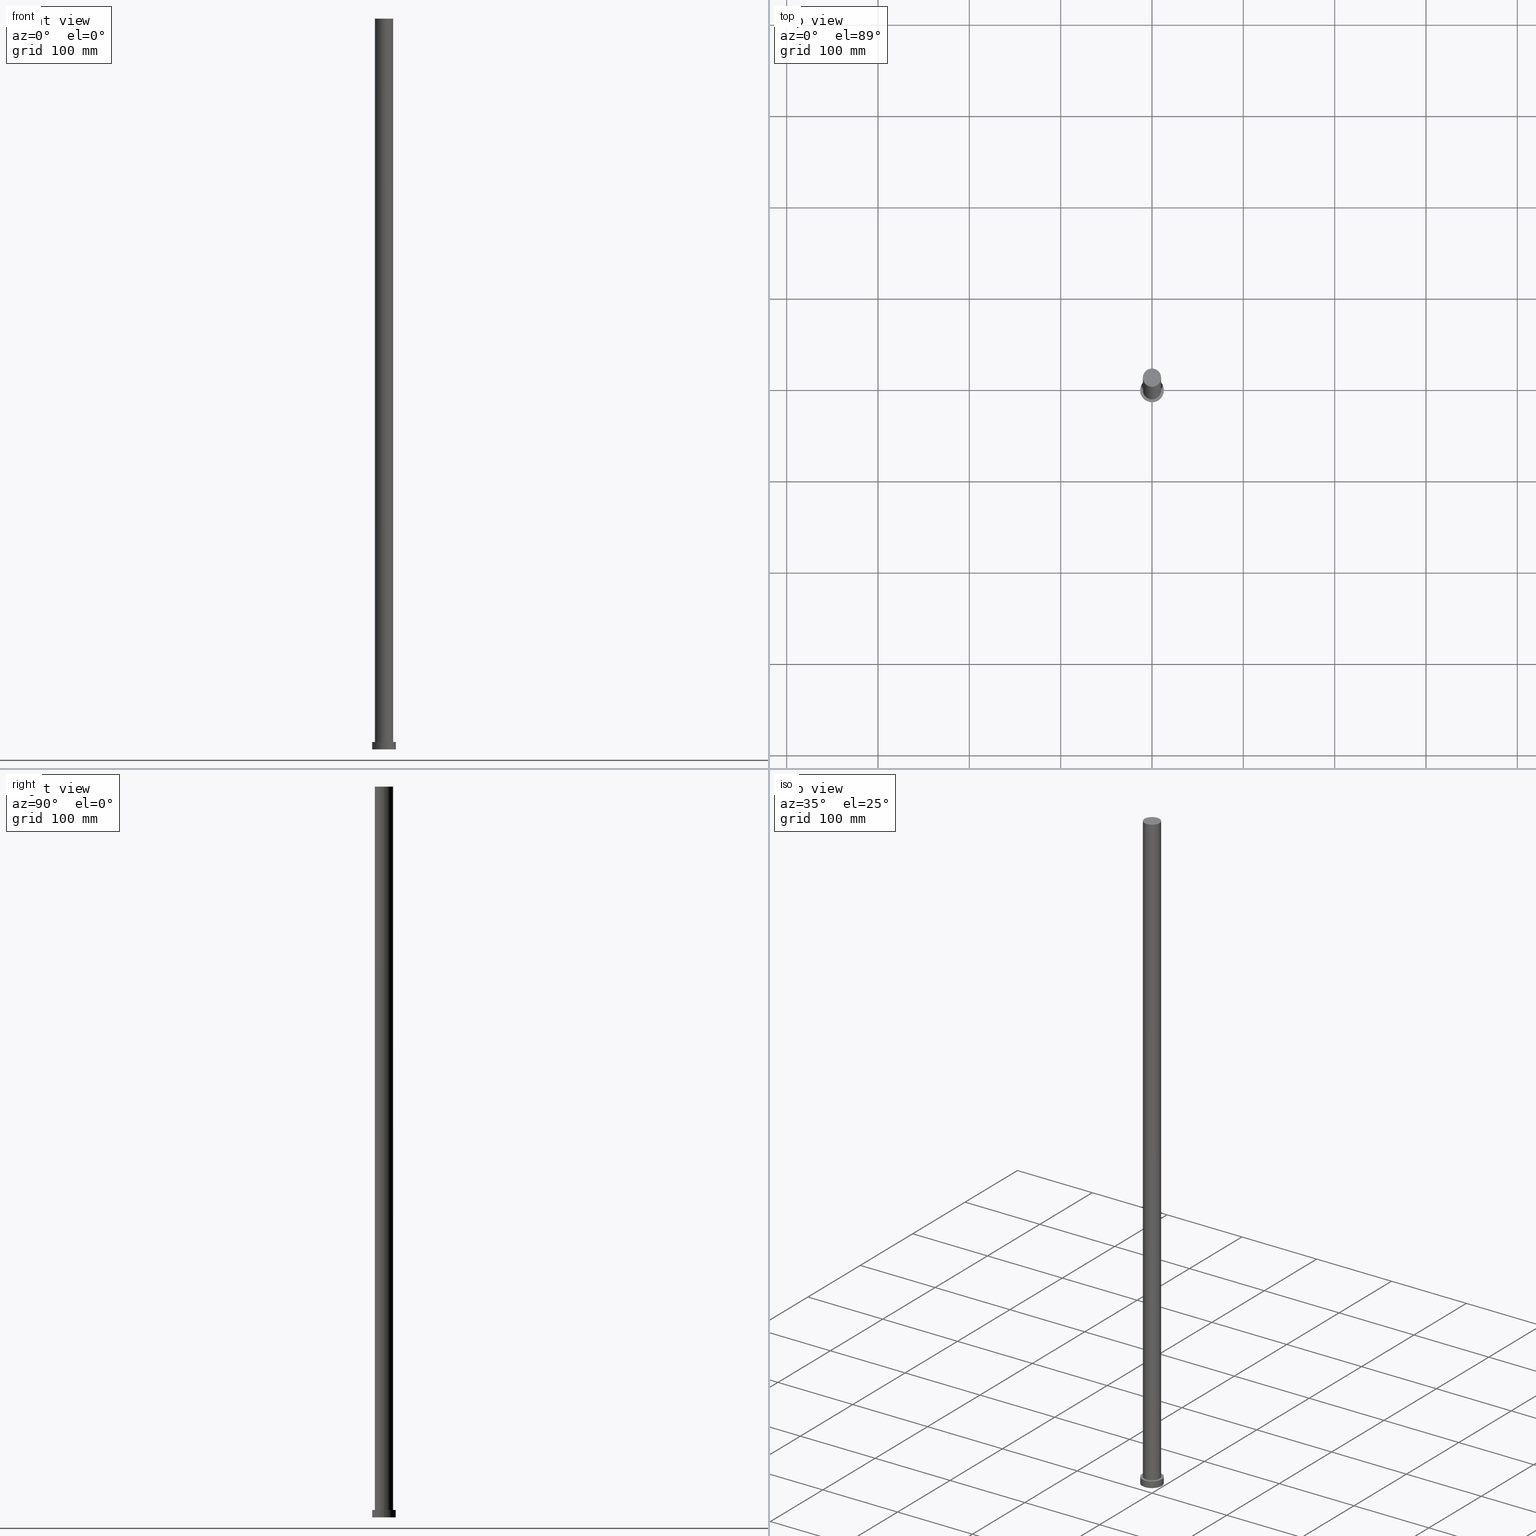
[diagram: canonical four-view strip — front | top / right | iso, engineering-drawing reading convention]
A machine part, canonical four-view strip (front | top / right | iso — engineering-drawing reading convention). The complete STEP part file that produces these views, byte-faithful:
ISO-10303-21;
HEADER;
FILE_DESCRIPTION (( 'STEP AP203' ),
    '1' );
FILE_NAME ('14ce.STEP',
    '2023-02-13T07:53:13',
    ( '' ),
    ( '' ),
    'SwSTEP 2.0',
    'SolidWorks 2019',
    '' );
FILE_SCHEMA (( 'CONFIG_CONTROL_DESIGN' ));
ENDSEC;

DATA;
#1 = VECTOR ( 'NONE', #190, 1000.000000000000000 ) ;
#2 = CARTESIAN_POINT ( 'NONE',  ( 0.000000000000000000, 0.000000000000000000, 800.0000000000000000 ) ) ;
#3 = CARTESIAN_POINT ( 'NONE',  ( 0.000000000000000000, 0.000000000000000000, 0.000000000000000000 ) ) ;
#4 = APPROVAL_DATE_TIME ( #139, #84 ) ;
#5 = CARTESIAN_POINT ( 'NONE',  ( 10.00000000000000000, 1.224646799147353256E-15, 8.000000000000000000 ) ) ;
#6 = CARTESIAN_POINT ( 'NONE',  ( 0.000000000000000000, 0.000000000000000000, 8.000000000000000000 ) ) ;
#7 = DIRECTION ( 'NONE',  ( 1.000000000000000000, 0.000000000000000000, 0.000000000000000000 ) ) ;
#8 = APPROVAL ( #182, 'NEUR�EN�' ) ;
#9 = CALENDAR_DATE ( 2023, 13, 2 ) ;
#10 = CIRCLE ( 'NONE', #154, 10.00000000000000000 ) ;
#11 = ADVANCED_FACE ( 'NONE', ( #239 ), #45, .T. ) ;
#12 = EDGE_CURVE ( 'NONE', #250, #96, #197, .T. ) ;
#13 = VECTOR ( 'NONE', #92, 1000.000000000000000 ) ;
#14 = CC_DESIGN_APPROVAL ( #8, ( #198 ) ) ;
#15 = VERTEX_POINT ( 'NONE', #5 ) ;
#16 = ORIENTED_EDGE ( 'NONE', *, *, #54, .F. ) ;
#17 = PERSON_AND_ORGANIZATION_ROLE ( 'design_owner' ) ;
#18 = AXIS2_PLACEMENT_3D ( 'NONE', #167, #252, #116 ) ;
#19 = DIRECTION ( 'NONE',  ( 0.000000000000000000, 0.000000000000000000, 1.000000000000000000 ) ) ;
#20 = DIRECTION ( 'NONE',  ( 1.000000000000000000, 0.000000000000000000, -0.000000000000000000 ) ) ;
#21 = LINE ( 'NONE', #230, #13 ) ;
#22 = DIRECTION ( 'NONE',  ( -0.000000000000000000, -0.000000000000000000, -1.000000000000000000 ) ) ;
#23 = LOCAL_TIME ( 8, 53, 13.00000000000000000, #224 ) ;
#24 = DIRECTION ( 'NONE',  ( 1.000000000000000000, 0.000000000000000000, -0.000000000000000000 ) ) ;
#25 = CARTESIAN_POINT ( 'NONE',  ( 10.00000000000000000, 1.224646799147353256E-15, 800.0000000000000000 ) ) ;
#26 = CARTESIAN_POINT ( 'NONE',  ( 0.000000000000000000, 0.000000000000000000, 800.0000000000000000 ) ) ;
#27 = PERSON_AND_ORGANIZATION ( #49, #136 ) ;
#28 = CLOSED_SHELL ( 'NONE', ( #106, #11, #141, #126, #117, #155, #212 ) ) ;
#29 = EDGE_CURVE ( 'NONE', #96, #93, #193, .T. ) ;
#30 = ORIENTED_EDGE ( 'NONE', *, *, #12, .T. ) ;
#31 = SECURITY_CLASSIFICATION ( '', '', #87 ) ;
#32 = DATE_AND_TIME ( #180, #89 ) ;
#33 = EDGE_LOOP ( 'NONE', ( #65, #202, #214, #52 ) ) ;
#34 = ORIENTED_EDGE ( 'NONE', *, *, #228, .F. ) ;
#35 = CARTESIAN_POINT ( 'NONE',  ( -13.00000000000000178, 0.000000000000000000, 0.000000000000000000 ) ) ;
#36 = VECTOR ( 'NONE', #99, 1000.000000000000000 ) ;
#37 = CARTESIAN_POINT ( 'NONE',  ( 13.00000000000000178, 1.592040838891559293E-15, 0.000000000000000000 ) ) ;
#38 = EDGE_CURVE ( 'NONE', #199, #90, #131, .T. ) ;
#39 = CARTESIAN_POINT ( 'NONE',  ( -13.00000000000000178, 0.000000000000000000, 8.000000000000000000 ) ) ;
#40 = DIRECTION ( 'NONE',  ( 0.000000000000000000, 0.000000000000000000, 1.000000000000000000 ) ) ;
#41 = DIRECTION ( 'NONE',  ( -0.000000000000000000, -0.000000000000000000, -1.000000000000000000 ) ) ;
#42 = CYLINDRICAL_SURFACE ( 'NONE', #226, 13.00000000000000178 ) ;
#43 = AXIS2_PLACEMENT_3D ( 'NONE', #73, #189, #55 ) ;
#44 = DIRECTION ( 'NONE',  ( 1.000000000000000000, 0.000000000000000000, 0.000000000000000000 ) ) ;
#45 = CYLINDRICAL_SURFACE ( 'NONE', #113, 13.00000000000000178 ) ;
#46 = CARTESIAN_POINT ( 'NONE',  ( 0.000000000000000000, 0.000000000000000000, 8.000000000000000000 ) ) ;
#47 = VERTEX_POINT ( 'NONE', #25 ) ;
#48 = EDGE_LOOP ( 'NONE', ( #222, #243, #111, #249 ) ) ;
#49 = PERSON ( 'NEUR�EN�', 'NEUR�EN�', 'NEUR�EN�', ('NEUR�EN�'), ('NEUR�EN�'), ('NEUR�EN�') ) ;
#50 = COORDINATED_UNIVERSAL_TIME_OFFSET ( 1, 0, .AHEAD. ) ;
#51 = DATE_TIME_ROLE ( 'creation_date' ) ;
#52 = ORIENTED_EDGE ( 'NONE', *, *, #38, .F. ) ;
#53 = LOCAL_TIME ( 8, 53, 13.00000000000000000, #135 ) ;
#54 = EDGE_CURVE ( 'NONE', #96, #250, #201, .T. ) ;
#55 = DIRECTION ( 'NONE',  ( 1.000000000000000000, 0.000000000000000000, 0.000000000000000000 ) ) ;
#56 = CARTESIAN_POINT ( 'NONE',  ( 0.000000000000000000, 0.000000000000000000, 8.000000000000000000 ) ) ;
#57 = DIRECTION ( 'NONE',  ( -1.000000000000000000, 0.000000000000000000, 0.000000000000000000 ) ) ;
#58 = DIRECTION ( 'NONE',  ( 1.000000000000000000, 0.000000000000000000, 0.000000000000000000 ) ) ;
#59 = DIRECTION ( 'NONE',  ( 0.000000000000000000, 0.000000000000000000, 1.000000000000000000 ) ) ;
#60 = CARTESIAN_POINT ( 'NONE',  ( 0.000000000000000000, 0.000000000000000000, 800.0000000000000000 ) ) ;
#61 = CC_DESIGN_DATE_AND_TIME_ASSIGNMENT ( #185, #91, ( #31 ) ) ;
#62 = CARTESIAN_POINT ( 'NONE',  ( -10.00000000000000000, 0.000000000000000000, 8.000000000000000000 ) ) ;
#63 = SHAPE_DEFINITION_REPRESENTATION ( #174, #151 ) ;
#64 = CARTESIAN_POINT ( 'NONE',  ( 0.000000000000000000, 0.000000000000000000, 8.000000000000000000 ) ) ;
#65 = ORIENTED_EDGE ( 'NONE', *, *, #186, .F. ) ;
#66 = CIRCLE ( 'NONE', #104, 13.00000000000000178 ) ;
#67 = CC_DESIGN_SECURITY_CLASSIFICATION ( #31, ( #198 ) ) ;
#68 = AXIS2_PLACEMENT_3D ( 'NONE', #209, #40, #24 ) ;
#69 = APPROVAL_PERSON_ORGANIZATION ( #112, #86, #227 ) ;
#70 = ORIENTED_EDGE ( 'NONE', *, *, #148, .T. ) ;
#71 = EDGE_LOOP ( 'NONE', ( #146, #134 ) ) ;
#72 = CALENDAR_DATE ( 2023, 13, 2 ) ;
#73 = CARTESIAN_POINT ( 'NONE',  ( 0.000000000000000000, 0.000000000000000000, 0.000000000000000000 ) ) ;
#74 = DATE_AND_TIME ( #72, #127 ) ;
#75 = APPROVAL_ROLE ( '' ) ;
#76 = APPLICATION_CONTEXT ( 'configuration controlled 3d designs of mechanical parts and assemblies' ) ;
#77 = DIRECTION ( 'NONE',  ( 0.000000000000000000, 0.000000000000000000, 1.000000000000000000 ) ) ;
#78 = DIRECTION ( 'NONE',  ( 0.000000000000000000, 0.000000000000000000, 1.000000000000000000 ) ) ;
#79 = APPROVAL_STATUS ( 'not_yet_approved' ) ;
#80 = PLANE ( 'NONE',  #18 ) ;
#81 = PERSON_AND_ORGANIZATION_ROLE ( 'creator' ) ;
#82 = CARTESIAN_POINT ( 'NONE',  ( -10.00000000000000000, 0.000000000000000000, 800.0000000000000000 ) ) ;
#83 = AXIS2_PLACEMENT_3D ( 'NONE', #171, #231, #20 ) ;
#84 = APPROVAL ( #79, 'NEUR�EN�' ) ;
#85 =( GEOMETRIC_REPRESENTATION_CONTEXT ( 3 ) GLOBAL_UNCERTAINTY_ASSIGNED_CONTEXT ( ( #128 ) ) GLOBAL_UNIT_ASSIGNED_CONTEXT ( ( #95, #220, #160 ) ) REPRESENTATION_CONTEXT ( 'NONE', 'WORKASPACE' ) );
#86 = APPROVAL ( #207, 'NEUR�EN�' ) ;
#87 = SECURITY_CLASSIFICATION_LEVEL ( 'unclassified' ) ;
#88 = EDGE_LOOP ( 'NONE', ( #30, #247 ) ) ;
#89 = LOCAL_TIME ( 8, 53, 13.00000000000000000, #50 ) ;
#90 = VERTEX_POINT ( 'NONE', #62 ) ;
#91 = DATE_TIME_ROLE ( 'classification_date' ) ;
#92 = DIRECTION ( 'NONE',  ( -0.000000000000000000, -0.000000000000000000, -1.000000000000000000 ) ) ;
#93 = VERTEX_POINT ( 'NONE', #37 ) ;
#94 = AXIS2_PLACEMENT_3D ( 'NONE', #102, #120, #7 ) ;
#95 =( LENGTH_UNIT ( ) NAMED_UNIT ( * ) SI_UNIT ( .MILLI., .METRE. ) );
#96 = VERTEX_POINT ( 'NONE', #137 ) ;
#97 = FACE_BOUND ( 'NONE', #138, .T. ) ;
#98 = DIRECTION ( 'NONE',  ( -0.000000000000000000, -0.000000000000000000, -1.000000000000000000 ) ) ;
#99 = DIRECTION ( 'NONE',  ( -0.000000000000000000, -0.000000000000000000, -1.000000000000000000 ) ) ;
#100 = DIRECTION ( 'NONE',  ( 1.000000000000000000, 0.000000000000000000, 0.000000000000000000 ) ) ;
#101 = PERSON_AND_ORGANIZATION ( #49, #136 ) ;
#102 = CARTESIAN_POINT ( 'NONE',  ( 0.000000000000000000, 0.000000000000000000, 8.000000000000000000 ) ) ;
#103 = PRODUCT ( '14ce', '14ce', '', ( #200 ) ) ;
#104 = AXIS2_PLACEMENT_3D ( 'NONE', #3, #78, #118 ) ;
#105 = APPLICATION_CONTEXT ( 'configuration controlled 3d designs of mechanical parts and assemblies' ) ;
#106 = ADVANCED_FACE ( 'NONE', ( #196 ), #153, .T. ) ;
#107 = APPROVAL_ROLE ( '' ) ;
#108 = PERSON_AND_ORGANIZATION ( #49, #136 ) ;
#109 = EDGE_CURVE ( 'NONE', #250, #244, #152, .T. ) ;
#110 = AXIS2_PLACEMENT_3D ( 'NONE', #64, #59, #158 ) ;
#111 = ORIENTED_EDGE ( 'NONE', *, *, #109, .T. ) ;
#112 = PERSON_AND_ORGANIZATION ( #49, #136 ) ;
#113 = AXIS2_PLACEMENT_3D ( 'NONE', #46, #22, #57 ) ;
#114 = DIRECTION ( 'NONE',  ( -0.000000000000000000, -0.000000000000000000, -1.000000000000000000 ) ) ;
#115 = FACE_OUTER_BOUND ( 'NONE', #48, .T. ) ;
#116 = DIRECTION ( 'NONE',  ( 1.000000000000000000, 0.000000000000000000, -0.000000000000000000 ) ) ;
#117 = ADVANCED_FACE ( 'NONE', ( #237 ), #133, .F. ) ;
#118 = DIRECTION ( 'NONE',  ( 1.000000000000000000, 0.000000000000000000, 0.000000000000000000 ) ) ;
#119 = AXIS2_PLACEMENT_3D ( 'NONE', #6, #170, #100 ) ;
#120 = DIRECTION ( 'NONE',  ( 0.000000000000000000, 0.000000000000000000, 1.000000000000000000 ) ) ;
#121 = DIRECTION ( 'NONE',  ( -1.000000000000000000, 0.000000000000000000, 0.000000000000000000 ) ) ;
#122 = CARTESIAN_POINT ( 'NONE',  ( 0.000000000000000000, 0.000000000000000000, 0.000000000000000000 ) ) ;
#123 = AXIS2_PLACEMENT_3D ( 'NONE', #2, #77, #150 ) ;
#124 = CC_DESIGN_PERSON_AND_ORGANIZATION_ASSIGNMENT ( #245, #144, ( #31 ) ) ;
#125 = APPROVAL_DATE_TIME ( #32, #8 ) ;
#126 = ADVANCED_FACE ( 'NONE', ( #97, #169 ), #132, .T. ) ;
#127 = LOCAL_TIME ( 8, 53, 13.00000000000000000, #254 ) ;
#128 = UNCERTAINTY_MEASURE_WITH_UNIT (LENGTH_MEASURE( 1.000000000000000082E-05 ), #95, 'distance_accuracy_value', 'NONE');
#129 = DATE_AND_TIME ( #204, #53 ) ;
#130 = FACE_OUTER_BOUND ( 'NONE', #71, .T. ) ;
#131 = LINE ( 'NONE', #82, #36 ) ;
#132 = PLANE ( 'NONE',  #68 ) ;
#133 = PLANE ( 'NONE',  #83 ) ;
#134 = ORIENTED_EDGE ( 'NONE', *, *, #186, .T. ) ;
#135 = COORDINATED_UNIVERSAL_TIME_OFFSET ( 1, 0, .AHEAD. ) ;
#136 = ORGANIZATION ( 'NEUR�EN�', 'NEUR�EN�', '' ) ;
#137 = CARTESIAN_POINT ( 'NONE',  ( 13.00000000000000178, 1.592040838891559293E-15, 8.000000000000000000 ) ) ;
#138 = EDGE_LOOP ( 'NONE', ( #34, #236 ) ) ;
#139 = DATE_AND_TIME ( #9, #218 ) ;
#140 = APPLICATION_PROTOCOL_DEFINITION ( 'international standard', 'config_control_design', 1994, #105 ) ;
#141 = ADVANCED_FACE ( 'NONE', ( #115 ), #42, .T. ) ;
#142 = ORIENTED_EDGE ( 'NONE', *, *, #109, .F. ) ;
#143 = CC_DESIGN_DATE_AND_TIME_ASSIGNMENT ( #129, #51, ( #175 ) ) ;
#144 = PERSON_AND_ORGANIZATION_ROLE ( 'classification_officer' ) ;
#145 = CC_DESIGN_PERSON_AND_ORGANIZATION_ASSIGNMENT ( #181, #205, ( #198 ) ) ;
#146 = ORIENTED_EDGE ( 'NONE', *, *, #179, .T. ) ;
#147 = CALENDAR_DATE ( 2023, 13, 2 ) ;
#148 = EDGE_CURVE ( 'NONE', #93, #244, #66, .T. ) ;
#149 = CIRCLE ( 'NONE', #43, 13.00000000000000178 ) ;
#150 = DIRECTION ( 'NONE',  ( 1.000000000000000000, 0.000000000000000000, 0.000000000000000000 ) ) ;
#151 = ADVANCED_BREP_SHAPE_REPRESENTATION ( '14ce', ( #255, #183 ), #85 ) ;
#152 = LINE ( 'NONE', #215, #1 ) ;
#153 = CYLINDRICAL_SURFACE ( 'NONE', #178, 10.00000000000000000 ) ;
#154 = AXIS2_PLACEMENT_3D ( 'NONE', #56, #19, #58 ) ;
#155 = ADVANCED_FACE ( 'NONE', ( #195 ), #238, .T. ) ;
#156 = CARTESIAN_POINT ( 'NONE',  ( 13.00000000000000178, 1.592040838891559293E-15, 8.000000000000000000 ) ) ;
#157 = PRODUCT_RELATED_PRODUCT_CATEGORY ( 'detail', '', ( #103 ) ) ;
#158 = DIRECTION ( 'NONE',  ( 1.000000000000000000, 0.000000000000000000, 0.000000000000000000 ) ) ;
#159 = DIRECTION ( 'NONE',  ( 0.000000000000000000, 0.000000000000000000, 1.000000000000000000 ) ) ;
#160 =( NAMED_UNIT ( * ) SI_UNIT ( $, .STERADIAN. ) SOLID_ANGLE_UNIT ( ) );
#161 = EDGE_CURVE ( 'NONE', #15, #90, #191, .T. ) ;
#162 = VECTOR ( 'NONE', #234, 1000.000000000000000 ) ;
#163 = PERSON_AND_ORGANIZATION ( #49, #136 ) ;
#164 = ORIENTED_EDGE ( 'NONE', *, *, #29, .T. ) ;
#165 = ORIENTED_EDGE ( 'NONE', *, *, #192, .F. ) ;
#166 = PERSON_AND_ORGANIZATION ( #49, #136 ) ;
#167 = CARTESIAN_POINT ( 'NONE',  ( 0.000000000000000000, 0.000000000000000000, 800.0000000000000000 ) ) ;
#168 = CC_DESIGN_APPROVAL ( #86, ( #175 ) ) ;
#169 = FACE_OUTER_BOUND ( 'NONE', #88, .T. ) ;
#170 = DIRECTION ( 'NONE',  ( 0.000000000000000000, 0.000000000000000000, 1.000000000000000000 ) ) ;
#171 = CARTESIAN_POINT ( 'NONE',  ( 0.000000000000000000, 0.000000000000000000, 0.000000000000000000 ) ) ;
#172 = APPROVAL_PERSON_ORGANIZATION ( #166, #84, #75 ) ;
#173 = ORIENTED_EDGE ( 'NONE', *, *, #148, .F. ) ;
#174 = PRODUCT_DEFINITION_SHAPE ( 'NONE', 'NONE',  #175 ) ;
#175 = PRODUCT_DEFINITION ( 'NEZN�M�', '', #198, #253 ) ;
#176 = ORIENTED_EDGE ( 'NONE', *, *, #242, .F. ) ;
#177 = CC_DESIGN_PERSON_AND_ORGANIZATION_ASSIGNMENT ( #27, #81, ( #175 ) ) ;
#178 = AXIS2_PLACEMENT_3D ( 'NONE', #26, #114, #187 ) ;
#179 = EDGE_CURVE ( 'NONE', #199, #47, #251, .T. ) ;
#180 = CALENDAR_DATE ( 2023, 13, 2 ) ;
#181 = PERSON_AND_ORGANIZATION ( #49, #136 ) ;
#182 = APPROVAL_STATUS ( 'not_yet_approved' ) ;
#183 = AXIS2_PLACEMENT_3D ( 'NONE', #122, #159, #241 ) ;
#184 = ORIENTED_EDGE ( 'NONE', *, *, #179, .F. ) ;
#185 = DATE_AND_TIME ( #147, #23 ) ;
#186 = EDGE_CURVE ( 'NONE', #47, #199, #233, .T. ) ;
#187 = DIRECTION ( 'NONE',  ( -1.000000000000000000, 0.000000000000000000, 0.000000000000000000 ) ) ;
#188 = CARTESIAN_POINT ( 'NONE',  ( 0.000000000000000000, 0.000000000000000000, 8.000000000000000000 ) ) ;
#189 = DIRECTION ( 'NONE',  ( 0.000000000000000000, 0.000000000000000000, 1.000000000000000000 ) ) ;
#190 = DIRECTION ( 'NONE',  ( -0.000000000000000000, -0.000000000000000000, -1.000000000000000000 ) ) ;
#191 = CIRCLE ( 'NONE', #119, 10.00000000000000000 ) ;
#192 = EDGE_CURVE ( 'NONE', #47, #15, #21, .T. ) ;
#193 = LINE ( 'NONE', #156, #162 ) ;
#194 = CC_DESIGN_PERSON_AND_ORGANIZATION_ASSIGNMENT ( #163, #248, ( #198 ) ) ;
#195 = FACE_OUTER_BOUND ( 'NONE', #223, .T. ) ;
#196 = FACE_OUTER_BOUND ( 'NONE', #33, .T. ) ;
#197 = CIRCLE ( 'NONE', #110, 13.00000000000000178 ) ;
#198 = PRODUCT_DEFINITION_FORMATION_WITH_SPECIFIED_SOURCE ( 'LIBOVOLN�', '', #103, .NOT_KNOWN. ) ;
#199 = VERTEX_POINT ( 'NONE', #210 ) ;
#200 = MECHANICAL_CONTEXT ( 'NONE', #105, 'mechanical' ) ;
#201 = CIRCLE ( 'NONE', #94, 13.00000000000000178 ) ;
#202 = ORIENTED_EDGE ( 'NONE', *, *, #192, .T. ) ;
#203 = EDGE_LOOP ( 'NONE', ( #16, #164, #70, #142 ) ) ;
#204 = CALENDAR_DATE ( 2023, 13, 2 ) ;
#205 = PERSON_AND_ORGANIZATION_ROLE ( 'design_supplier' ) ;
#206 = EDGE_LOOP ( 'NONE', ( #176, #173 ) ) ;
#207 = APPROVAL_STATUS ( 'not_yet_approved' ) ;
#208 = AXIS2_PLACEMENT_3D ( 'NONE', #60, #41, #121 ) ;
#209 = CARTESIAN_POINT ( 'NONE',  ( 0.000000000000000000, 0.000000000000000000, 8.000000000000000000 ) ) ;
#210 = CARTESIAN_POINT ( 'NONE',  ( -10.00000000000000000, 0.000000000000000000, 800.0000000000000000 ) ) ;
#211 = DIRECTION ( 'NONE',  ( -1.000000000000000000, 0.000000000000000000, 0.000000000000000000 ) ) ;
#212 = ADVANCED_FACE ( 'NONE', ( #130 ), #80, .T. ) ;
#213 = ORIENTED_EDGE ( 'NONE', *, *, #228, .T. ) ;
#214 = ORIENTED_EDGE ( 'NONE', *, *, #161, .T. ) ;
#215 = CARTESIAN_POINT ( 'NONE',  ( -13.00000000000000178, 0.000000000000000000, 8.000000000000000000 ) ) ;
#216 = CARTESIAN_POINT ( 'NONE',  ( 0.000000000000000000, 0.000000000000000000, 800.0000000000000000 ) ) ;
#217 = ORIENTED_EDGE ( 'NONE', *, *, #38, .T. ) ;
#218 = LOCAL_TIME ( 8, 53, 13.00000000000000000, #232 ) ;
#219 = APPROVAL_PERSON_ORGANIZATION ( #108, #8, #107 ) ;
#220 =( NAMED_UNIT ( * ) PLANE_ANGLE_UNIT ( ) SI_UNIT ( $, .RADIAN. ) );
#221 = CC_DESIGN_PERSON_AND_ORGANIZATION_ASSIGNMENT ( #101, #17, ( #103 ) ) ;
#222 = ORIENTED_EDGE ( 'NONE', *, *, #29, .F. ) ;
#223 = EDGE_LOOP ( 'NONE', ( #165, #184, #217, #213 ) ) ;
#224 = COORDINATED_UNIVERSAL_TIME_OFFSET ( 1, 0, .AHEAD. ) ;
#225 = APPLICATION_PROTOCOL_DEFINITION ( 'international standard', 'config_control_design', 1994, #76 ) ;
#226 = AXIS2_PLACEMENT_3D ( 'NONE', #188, #98, #211 ) ;
#227 = APPROVAL_ROLE ( '' ) ;
#228 = EDGE_CURVE ( 'NONE', #90, #15, #10, .T. ) ;
#229 = APPROVAL_DATE_TIME ( #74, #86 ) ;
#230 = CARTESIAN_POINT ( 'NONE',  ( 10.00000000000000000, 1.224646799147353256E-15, 800.0000000000000000 ) ) ;
#231 = DIRECTION ( 'NONE',  ( 0.000000000000000000, 0.000000000000000000, 1.000000000000000000 ) ) ;
#232 = COORDINATED_UNIVERSAL_TIME_OFFSET ( 1, 0, .AHEAD. ) ;
#233 = CIRCLE ( 'NONE', #123, 10.00000000000000000 ) ;
#234 = DIRECTION ( 'NONE',  ( -0.000000000000000000, -0.000000000000000000, -1.000000000000000000 ) ) ;
#235 = DIRECTION ( 'NONE',  ( 0.000000000000000000, 0.000000000000000000, 1.000000000000000000 ) ) ;
#236 = ORIENTED_EDGE ( 'NONE', *, *, #161, .F. ) ;
#237 = FACE_OUTER_BOUND ( 'NONE', #206, .T. ) ;
#238 = CYLINDRICAL_SURFACE ( 'NONE', #208, 10.00000000000000000 ) ;
#239 = FACE_OUTER_BOUND ( 'NONE', #203, .T. ) ;
#240 = CC_DESIGN_APPROVAL ( #84, ( #31 ) ) ;
#241 = DIRECTION ( 'NONE',  ( 1.000000000000000000, 0.000000000000000000, 0.000000000000000000 ) ) ;
#242 = EDGE_CURVE ( 'NONE', #244, #93, #149, .T. ) ;
#243 = ORIENTED_EDGE ( 'NONE', *, *, #12, .F. ) ;
#244 = VERTEX_POINT ( 'NONE', #35 ) ;
#245 = PERSON_AND_ORGANIZATION ( #49, #136 ) ;
#246 = AXIS2_PLACEMENT_3D ( 'NONE', #216, #235, #44 ) ;
#247 = ORIENTED_EDGE ( 'NONE', *, *, #54, .T. ) ;
#248 = PERSON_AND_ORGANIZATION_ROLE ( 'creator' ) ;
#249 = ORIENTED_EDGE ( 'NONE', *, *, #242, .T. ) ;
#250 = VERTEX_POINT ( 'NONE', #39 ) ;
#251 = CIRCLE ( 'NONE', #246, 10.00000000000000000 ) ;
#252 = DIRECTION ( 'NONE',  ( 0.000000000000000000, 0.000000000000000000, 1.000000000000000000 ) ) ;
#253 = DESIGN_CONTEXT ( 'detailed design', #76, 'design' ) ;
#254 = COORDINATED_UNIVERSAL_TIME_OFFSET ( 1, 0, .AHEAD. ) ;
#255 = MANIFOLD_SOLID_BREP ( 'P�idat vysunut�m3', #28 ) ;
ENDSEC;
END-ISO-10303-21;
